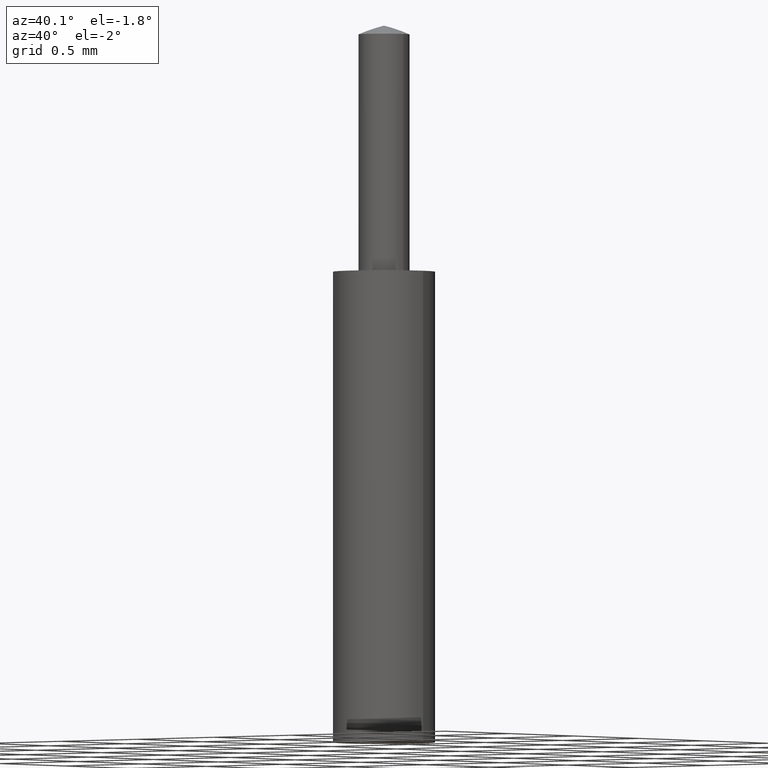
[diagram: clean part render]
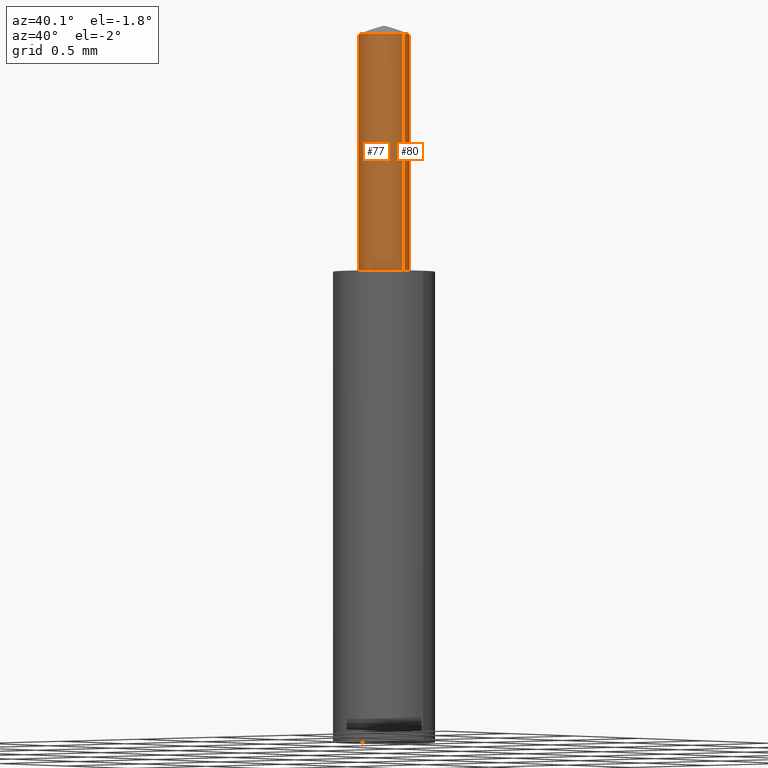
[diagram: same view with one multi-face feature highlighted, each face labeled with its STEP entity id]
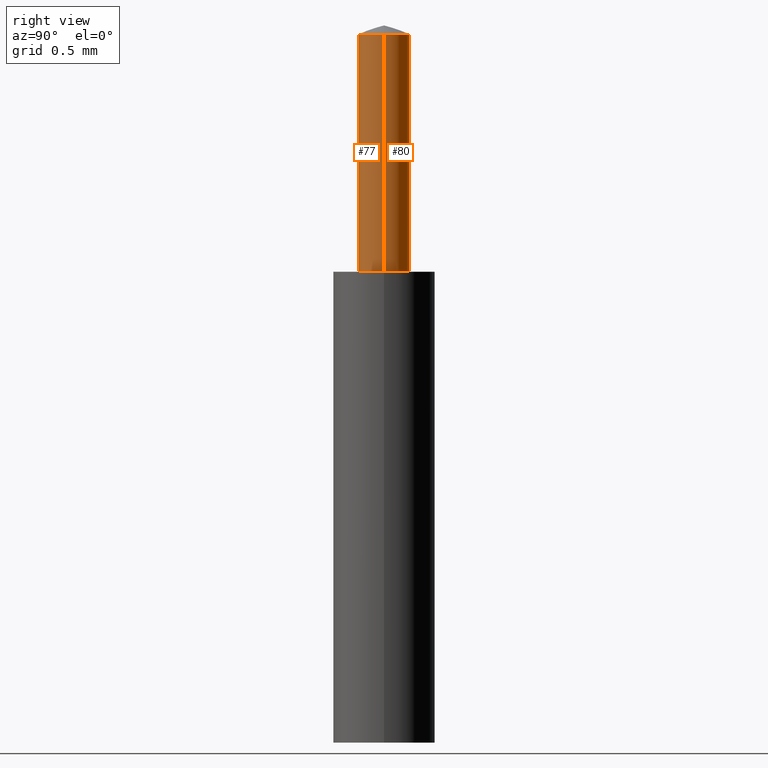
[diagram: same view with one multi-face feature highlighted, each face labeled with its STEP entity id]
A machine part, auxiliary view. The highlighted faces form ONE feature: a constant-radius fillet chain: 2 tangent blend faces with common blend radius 0.127 mm. The faces share edges in the B-rep.
A second angle (right view) of the same feature is appended — it is thin or edge-on in the first view.
Their STEP definitions:
[1] entity #77 (Cylinder):
#26 = AXIS2_PLACEMENT_3D ( 'NONE', #248, #242, #235 ) ;
#47 = AXIS2_PLACEMENT_3D ( 'NONE', #310, #311, #312 ) ;
#48 = EDGE_CURVE ( 'NONE', #169, #165, #143, .T. ) ;
#50 = EDGE_CURVE ( 'NONE', #154, #177, #168, .T. ) ;
#53 = AXIS2_PLACEMENT_3D ( 'NONE', #304, #361, #295 ) ;
#65 = EDGE_CURVE ( 'NONE', #154, #169, #142, .T. ) ;
#66 = EDGE_CURVE ( 'NONE', #177, #165, #139, .T. ) ;
#77 = ADVANCED_FACE ( 'NONE', ( #164 ), #107, .T. ) ;
#107 = CYLINDRICAL_SURFACE ( 'NONE', #26, 0.005000000000000000100 ) ;
#131 = ORIENTED_EDGE ( 'NONE', *, *, #65, .F. ) ;
#139 = LINE ( 'NONE', #359, #153 ) ;
#142 = LINE ( 'NONE', #337, #194 ) ;
#143 = CIRCLE ( 'NONE', #53, 0.005000000000000000100 ) ;
#153 = VECTOR ( 'NONE', #358, 39.37007874015748100 ) ;
#154 = VERTEX_POINT ( 'NONE', #267 ) ;
#159 = ORIENTED_EDGE ( 'NONE', *, *, #48, .F. ) ;
#162 = ORIENTED_EDGE ( 'NONE', *, *, #66, .T. ) ;
#164 = FACE_OUTER_BOUND ( 'NONE', #197, .T. ) ;
#165 = VERTEX_POINT ( 'NONE', #263 ) ;
#168 = CIRCLE ( 'NONE', #47, 0.005000000000000000100 ) ;
#169 = VERTEX_POINT ( 'NONE', #265 ) ;
#177 = VERTEX_POINT ( 'NONE', #327 ) ;
#194 = VECTOR ( 'NONE', #283, 39.37007874015748100 ) ;
#197 = EDGE_LOOP ( 'NONE', ( #131, #232, #162, #159 ) ) ;
#232 = ORIENTED_EDGE ( 'NONE', *, *, #50, .T. ) ;
#235 = DIRECTION ( 'NONE',  ( -1.000000000000000000, 0.0000000000000000000, 0.0000000000000000000 ) ) ;
#242 = DIRECTION ( 'NONE',  ( -0.0000000000000000000, -0.0000000000000000000, -1.000000000000000000 ) ) ;
#248 = CARTESIAN_POINT ( 'NONE',  ( 0.0000000000000000000, 0.0000000000000000000, 0.0000000000000000000 ) ) ;
#263 = CARTESIAN_POINT ( 'NONE',  ( -0.005000000000000000100, 0.0000000000000000000, 0.0000000000000000000 ) ) ;
#265 = CARTESIAN_POINT ( 'NONE',  ( 0.005000000000000000100, 6.123233995736766900E-019, 0.0000000000000000000 ) ) ;
#267 = CARTESIAN_POINT ( 'NONE',  ( 0.005000000000000000100, 6.123233995736766900E-019, 0.1387676933219367000 ) ) ;
#283 = DIRECTION ( 'NONE',  ( -0.0000000000000000000, -0.0000000000000000000, -1.000000000000000000 ) ) ;
#295 = DIRECTION ( 'NONE',  ( -1.000000000000000000, 0.0000000000000000000, 0.0000000000000000000 ) ) ;
#304 = CARTESIAN_POINT ( 'NONE',  ( 0.0000000000000000000, 0.0000000000000000000, 0.0000000000000000000 ) ) ;
#310 = CARTESIAN_POINT ( 'NONE',  ( 0.0000000000000000000, 0.0000000000000000000, 0.1387676933219367000 ) ) ;
#311 = DIRECTION ( 'NONE',  ( -0.0000000000000000000, -0.0000000000000000000, -1.000000000000000000 ) ) ;
#312 = DIRECTION ( 'NONE',  ( -1.000000000000000000, 0.0000000000000000000, 0.0000000000000000000 ) ) ;
#327 = CARTESIAN_POINT ( 'NONE',  ( -0.005000000000000000100, 0.0000000000000000000, 0.1387676933219367000 ) ) ;
#337 = CARTESIAN_POINT ( 'NONE',  ( 0.005000000000000000100, 6.123233995736766900E-019, 0.0000000000000000000 ) ) ;
#358 = DIRECTION ( 'NONE',  ( -0.0000000000000000000, -0.0000000000000000000, -1.000000000000000000 ) ) ;
#359 = CARTESIAN_POINT ( 'NONE',  ( -0.005000000000000000100, 0.0000000000000000000, 0.0000000000000000000 ) ) ;
#361 = DIRECTION ( 'NONE',  ( -0.0000000000000000000, -0.0000000000000000000, -1.000000000000000000 ) ) ;
[2] entity #80 (Cylinder):
#23 = AXIS2_PLACEMENT_3D ( 'NONE', #252, #257, #254 ) ;
#36 = AXIS2_PLACEMENT_3D ( 'NONE', #299, #344, #296 ) ;
#37 = AXIS2_PLACEMENT_3D ( 'NONE', #307, #356, #308 ) ;
#64 = EDGE_CURVE ( 'NONE', #177, #154, #199, .T. ) ;
#65 = EDGE_CURVE ( 'NONE', #154, #169, #142, .T. ) ;
#66 = EDGE_CURVE ( 'NONE', #177, #165, #139, .T. ) ;
#67 = EDGE_CURVE ( 'NONE', #165, #169, #135, .T. ) ;
#80 = ADVANCED_FACE ( 'NONE', ( #126 ), #111, .T. ) ;
#111 = CYLINDRICAL_SURFACE ( 'NONE', #23, 0.005000000000000000100 ) ;
#126 = FACE_OUTER_BOUND ( 'NONE', #144, .T. ) ;
#130 = ORIENTED_EDGE ( 'NONE', *, *, #64, .T. ) ;
#135 = CIRCLE ( 'NONE', #36, 0.005000000000000000100 ) ;
#136 = ORIENTED_EDGE ( 'NONE', *, *, #67, .F. ) ;
#139 = LINE ( 'NONE', #359, #153 ) ;
#142 = LINE ( 'NONE', #337, #194 ) ;
#144 = EDGE_LOOP ( 'NONE', ( #130, #210, #136, #216 ) ) ;
#153 = VECTOR ( 'NONE', #358, 39.37007874015748100 ) ;
#154 = VERTEX_POINT ( 'NONE', #267 ) ;
#165 = VERTEX_POINT ( 'NONE', #263 ) ;
#169 = VERTEX_POINT ( 'NONE', #265 ) ;
#177 = VERTEX_POINT ( 'NONE', #327 ) ;
#194 = VECTOR ( 'NONE', #283, 39.37007874015748100 ) ;
#199 = CIRCLE ( 'NONE', #37, 0.005000000000000000100 ) ;
#210 = ORIENTED_EDGE ( 'NONE', *, *, #65, .T. ) ;
#216 = ORIENTED_EDGE ( 'NONE', *, *, #66, .F. ) ;
#252 = CARTESIAN_POINT ( 'NONE',  ( 0.0000000000000000000, 0.0000000000000000000, 0.0000000000000000000 ) ) ;
#254 = DIRECTION ( 'NONE',  ( -1.000000000000000000, 0.0000000000000000000, 0.0000000000000000000 ) ) ;
#257 = DIRECTION ( 'NONE',  ( -0.0000000000000000000, -0.0000000000000000000, -1.000000000000000000 ) ) ;
#263 = CARTESIAN_POINT ( 'NONE',  ( -0.005000000000000000100, 0.0000000000000000000, 0.0000000000000000000 ) ) ;
#265 = CARTESIAN_POINT ( 'NONE',  ( 0.005000000000000000100, 6.123233995736766900E-019, 0.0000000000000000000 ) ) ;
#267 = CARTESIAN_POINT ( 'NONE',  ( 0.005000000000000000100, 6.123233995736766900E-019, 0.1387676933219367000 ) ) ;
#283 = DIRECTION ( 'NONE',  ( -0.0000000000000000000, -0.0000000000000000000, -1.000000000000000000 ) ) ;
#296 = DIRECTION ( 'NONE',  ( -1.000000000000000000, 0.0000000000000000000, 0.0000000000000000000 ) ) ;
#299 = CARTESIAN_POINT ( 'NONE',  ( 0.0000000000000000000, 0.0000000000000000000, 0.0000000000000000000 ) ) ;
#307 = CARTESIAN_POINT ( 'NONE',  ( 0.0000000000000000000, 0.0000000000000000000, 0.1387676933219367000 ) ) ;
#308 = DIRECTION ( 'NONE',  ( -1.000000000000000000, 0.0000000000000000000, 0.0000000000000000000 ) ) ;
#327 = CARTESIAN_POINT ( 'NONE',  ( -0.005000000000000000100, 0.0000000000000000000, 0.1387676933219367000 ) ) ;
#337 = CARTESIAN_POINT ( 'NONE',  ( 0.005000000000000000100, 6.123233995736766900E-019, 0.0000000000000000000 ) ) ;
#344 = DIRECTION ( 'NONE',  ( -0.0000000000000000000, -0.0000000000000000000, -1.000000000000000000 ) ) ;
#356 = DIRECTION ( 'NONE',  ( -0.0000000000000000000, -0.0000000000000000000, -1.000000000000000000 ) ) ;
#358 = DIRECTION ( 'NONE',  ( -0.0000000000000000000, -0.0000000000000000000, -1.000000000000000000 ) ) ;
#359 = CARTESIAN_POINT ( 'NONE',  ( -0.005000000000000000100, 0.0000000000000000000, 0.0000000000000000000 ) ) ;